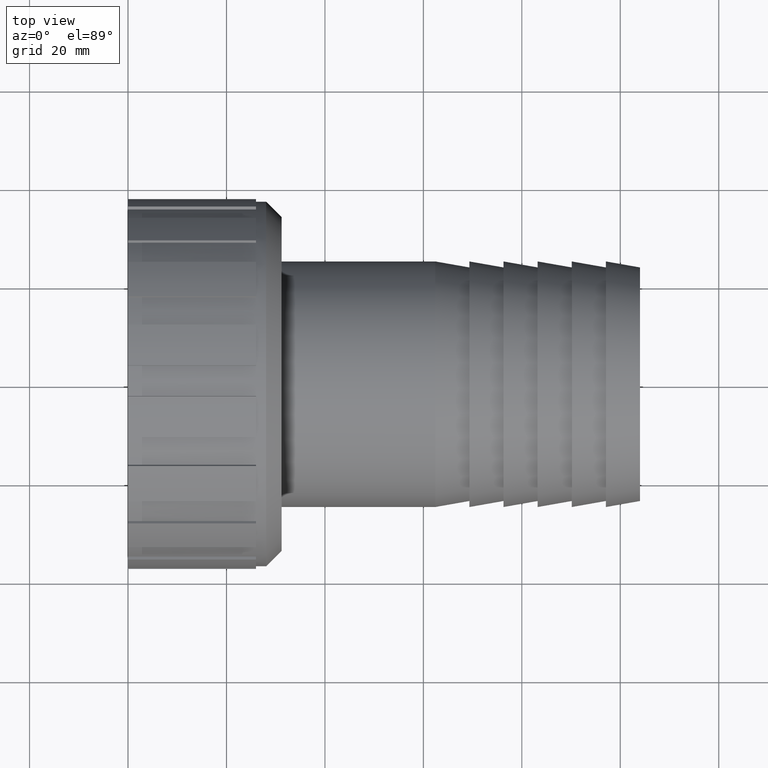
[diagram: clean part render]
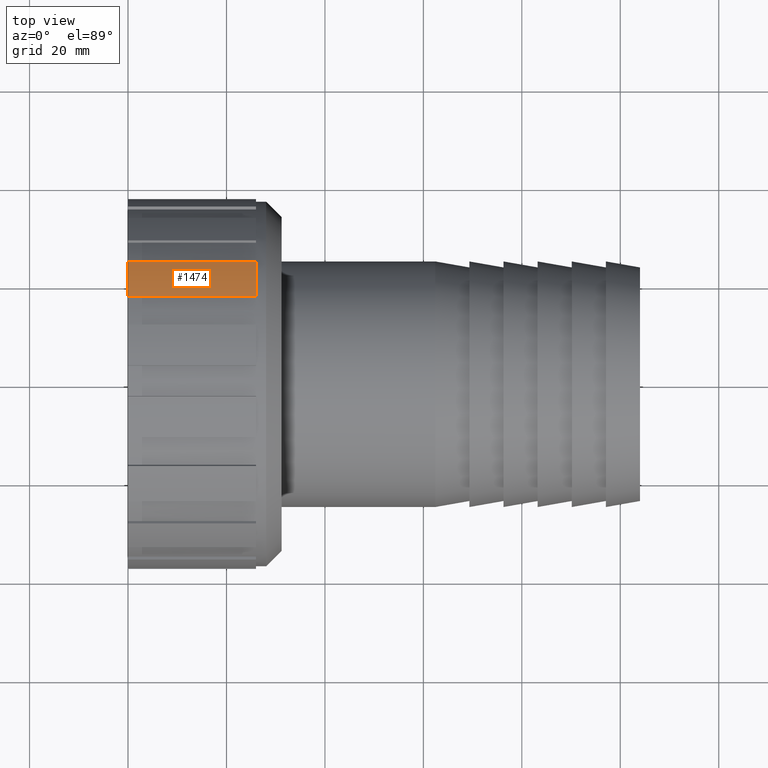
[diagram: same view with one face highlighted and labeled with its STEP entity id]
A machine part, top view. The second image highlights one B-rep face of the part: STEP entity #1474.
In plain terms, the highlighted cylindrical surface (partial cylindrical patch) has radius 37.6512 mm, axis along (-1, 0, 0).
Its self-contained STEP definition (entity closure, byte-faithful):
#23=CYLINDRICAL_SURFACE('',#1625,37.6512);
#67=CIRCLE('',#1548,37.6512);
#97=CIRCLE('',#1580,37.6512);
#193=FACE_OUTER_BOUND('',#278,.T.);
#278=EDGE_LOOP('',(#1200,#1201,#1202,#1203));
#442=LINE('',#2392,#570);
#448=LINE('',#2404,#576);
#570=VECTOR('',#1846,26.);
#576=VECTOR('',#1854,26.);
#697=VERTEX_POINT('',#2388);
#699=VERTEX_POINT('',#2391);
#702=VERTEX_POINT('',#2398);
#704=VERTEX_POINT('',#2402);
#845=EDGE_CURVE('',#699,#697,#442,.T.);
#851=EDGE_CURVE('',#702,#704,#448,.T.);
#863=EDGE_CURVE('',#702,#697,#67,.T.);
#894=EDGE_CURVE('',#704,#699,#97,.T.);
#1200=ORIENTED_EDGE('',*,*,#845,.T.);
#1201=ORIENTED_EDGE('',*,*,#863,.F.);
#1202=ORIENTED_EDGE('',*,*,#851,.T.);
#1203=ORIENTED_EDGE('',*,*,#894,.T.);
#1474=ADVANCED_FACE('',(#193),#23,.T.);
#1548=AXIS2_PLACEMENT_3D('',#2426,#1875,#1876);
#1580=AXIS2_PLACEMENT_3D('',#2462,#1940,#1941);
#1625=AXIS2_PLACEMENT_3D('',#2511,#2032,#2033);
#1846=DIRECTION('',(-1.,0.,0.));
#1854=DIRECTION('',(1.,0.,0.));
#1875=DIRECTION('center_axis',(-1.,0.,0.));
#1876=DIRECTION('ref_axis',(0.,0.,1.));
#1940=DIRECTION('center_axis',(-1.,0.,0.));
#1941=DIRECTION('ref_axis',(0.,0.,1.));
#2032=DIRECTION('center_axis',(-1.,0.,0.));
#2033=DIRECTION('ref_axis',(0.,-1.,0.));
#2388=CARTESIAN_POINT('',(0.,24.3121971266205,28.7494335999224));
#2391=CARTESIAN_POINT('',(26.,24.3121971266205,28.7494335999224));
#2392=CARTESIAN_POINT('',(13.,24.3121971266205,28.7494335999224));
#2398=CARTESIAN_POINT('',(0.,17.2571382295087,33.463473244235));
#2402=CARTESIAN_POINT('',(26.,17.2571382295087,33.4634732442349));
#2404=CARTESIAN_POINT('',(13.,17.2571382295087,33.463473244235));
#2426=CARTESIAN_POINT('Origin',(0.,0.,0.));
#2462=CARTESIAN_POINT('Origin',(26.,0.,0.));
#2511=CARTESIAN_POINT('Origin',(13.,0.,0.));